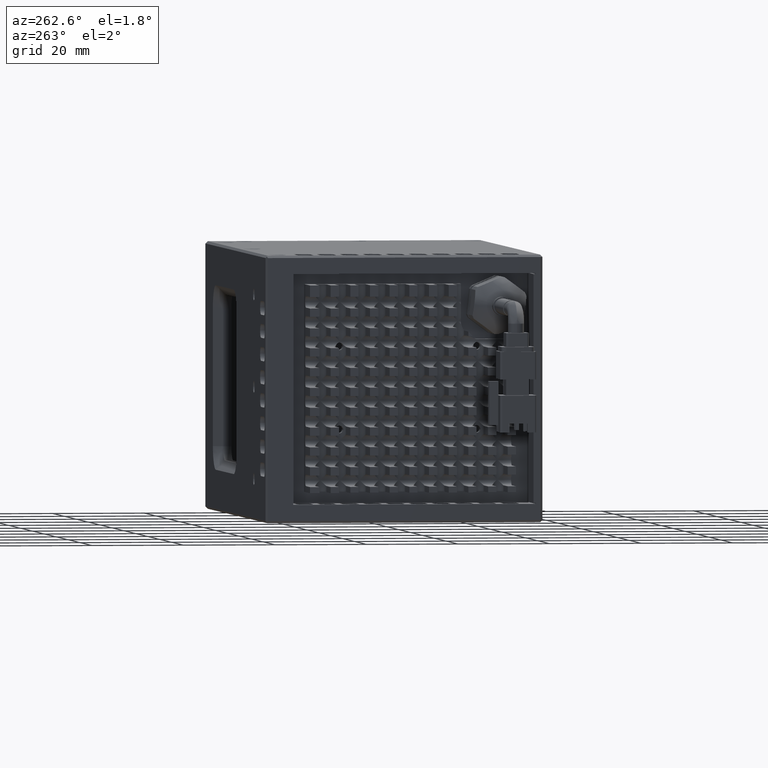
[diagram: clean part render]
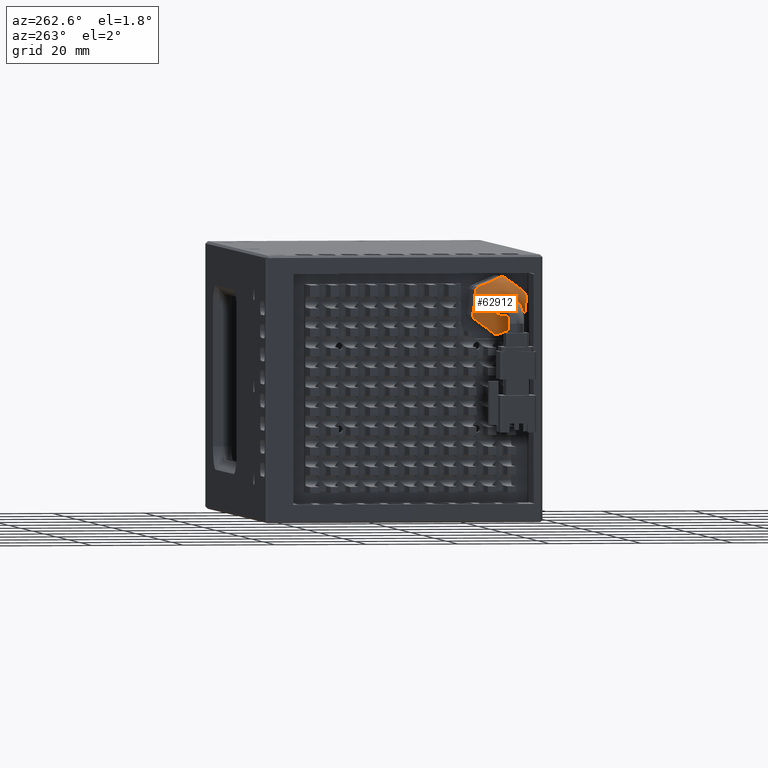
[diagram: same view with one face highlighted and labeled with its STEP entity id]
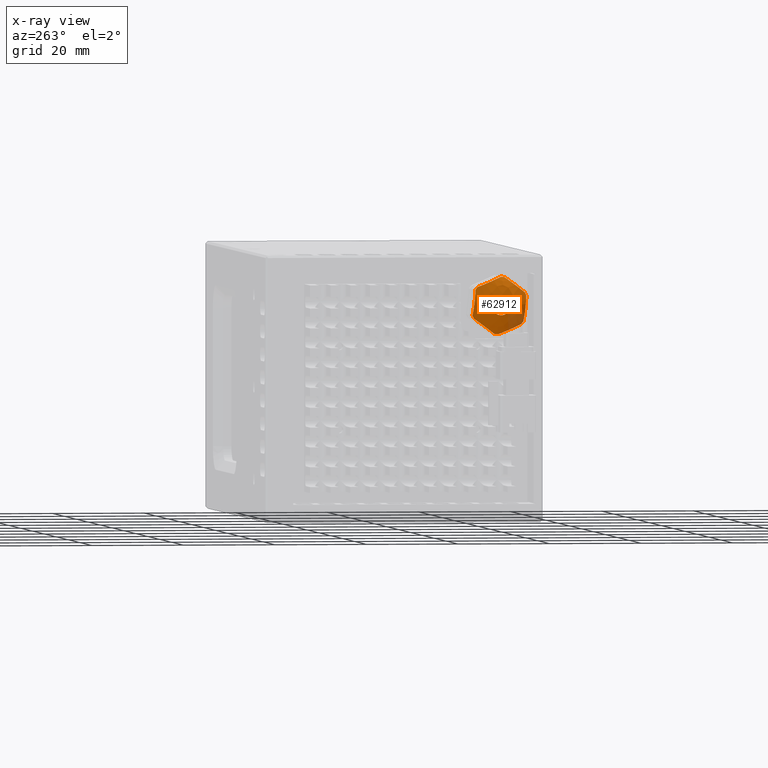
[diagram: x-ray of the same camera — body ghosted, the highlighted face saturated]
A machine part, auxiliary view. The second image highlights one B-rep face of the part: STEP entity #62912.
The next image is the same camera in x-ray: the body ghosted, the highlighted face saturated — about 18% of this face is hidden behind the body in this view.
In plain terms, the highlighted face is a freeform B-spline surface patch.
Its self-contained STEP definition (entity closure, byte-faithful):
#84 = CARTESIAN_POINT ( 'NONE',  ( -69.38120834824232500, -3.563055236811629700, 44.43191963570969700 ) ) ;
#143 = CARTESIAN_POINT ( 'NONE',  ( -69.57956255432687000, 2.515760127302150400, 53.42479840440135800 ) ) ;
#327 = CARTESIAN_POINT ( 'NONE',  ( -68.86375292816285300, -4.107156259765115900, 49.10975138200239300 ) ) ;
#372 = CARTESIAN_POINT ( 'NONE',  ( -69.57956255432743800, 1.036226534503087900, 40.57520159561696000 ) ) ;
#442 = CARTESIAN_POINT ( 'NONE',  ( -68.86375292816285300, 1.775993330902647400, 47.00000000000953500 ) ) ;
#935 = CARTESIAN_POINT ( 'NONE',  ( -69.15758857129357300, -3.469106031768471400, 50.07829686325383300 ) ) ;
#1176 = CARTESIAN_POINT ( 'NONE',  ( -69.67125075074409300, -0.7791131227819094700, 52.07857863096266000 ) ) ;
#1217 = VERTEX_POINT ( 'NONE', #35298 ) ;
#2111 = CARTESIAN_POINT ( 'NONE',  ( -68.86375292816285300, 7.017840799722939900, 50.40375309235000900 ) ) ;
#2479 = B_SPLINE_CURVE_WITH_KNOTS ( 'NONE', 3,
 ( #40564, #3463, #51168, #19546, #56491, #24879, #61840, #30161, #67138, #35475, #3694, #40776, #9052, #46117, #14358, #51406 ),
 .UNSPECIFIED., .F., .F.,
 ( 4, 2, 2, 2, 2, 2, 2, 4 ),
 ( 4.690887623826672200E-016, 0.001475511169496401600, 0.002213266754244368100, 0.002951022338992334400, 0.003688777923740300700, 0.004426533508488267000, 0.005164289093236232800, 0.005902044677984199600 ),
 .UNSPECIFIED. ) ;
#2865 = ORIENTED_EDGE ( 'NONE', *, *, #33401, .F. ) ;
#3463 = CARTESIAN_POINT ( 'NONE',  ( -69.15758857129378600, 1.732659728277374100, 40.91846227494003300 ) ) ;
#3676 = EDGE_CURVE ( 'NONE', #16865, #66622, #28724, .T. ) ;
#3694 = CARTESIAN_POINT ( 'NONE',  ( -69.61395248318233100, -1.564223318503453500, 42.34279233010092000 ) ) ;
#3903 = CARTESIAN_POINT ( 'NONE',  ( -69.74788720313205200, 5.516405416110333500, 42.80281597644518900 ) ) ;
#4085 = CARTESIAN_POINT ( 'NONE',  ( -68.86375292816285300, 1.449180419135050600, 53.24144961694118200 ) ) ;
#4308 = CARTESIAN_POINT ( 'NONE',  ( -69.67125075074416400, 4.896618213582739200, 51.75207641375039500 ) ) ;
#4688 = CARTESIAN_POINT ( 'NONE',  ( -69.67060427605062500, 7.224915172861658500, 48.62346039733898100 ) ) ;
#4977 = CARTESIAN_POINT ( 'NONE',  ( -68.86375292816285300, 1.775993330902647400, 47.00000000000953500 ) ) ;
#5499 = CARTESIAN_POINT ( 'NONE',  ( -69.67060427605076700, -3.672928511056312100, 45.37653960267974900 ) ) ;
#5551 = CARTESIAN_POINT ( 'NONE',  ( -67.11748828113964300, -2.040397117867909200, 52.89484992564335600 ) ) ;
#5671 = EDGE_CURVE ( 'NONE', #28969, #11475, #65297, .T. ) ;
#5853 = DIRECTION ( 'NONE',  ( 0.0000000000000000000, 0.1155358669953259300, -0.9933033088828600000 ) ) ;
#6336 = CIRCLE ( 'NONE', #40163, 6.249999999999516800 ) ;
#6398 = EDGE_CURVE ( 'NONE', #31971, #14296, #6336, .T. ) ;
#6535 = CARTESIAN_POINT ( 'NONE',  ( -69.46139549951436700, -0.2098588700239784100, 52.50187673676001800 ) ) ;
#6621 = CARTESIAN_POINT ( 'NONE',  ( -68.86375292816285300, 1.775993330902647400, 47.00000000000953500 ) ) ;
#7465 = B_SPLINE_CURVE_WITH_KNOTS ( 'NONE', 3,
 ( #51375, #56684, #30361, #67337, #35677, #3903, #40965, #9245, #46317, #14565, #51602, #19986, #56906, #25291, #62240, #30595 ),
 .UNSPECIFIED., .F., .F.,
 ( 4, 2, 2, 2, 2, 2, 2, 4 ),
 ( 3.506984956607857700E-016, 0.001475511169496294900, 0.002213266754244266200, 0.002951022338992237300, 0.003688777923740208700, 0.004426533508488178500, 0.005164289093236150400, 0.005902044677984120600 ),
 .UNSPECIFIED. ) ;
#7968 = EDGE_CURVE ( 'NONE', #11348, #1217, #7465, .T. ) ;
#8208 = ORIENTED_EDGE ( 'NONE', *, *, #9037, .T. ) ;
#9037 = EDGE_CURVE ( 'NONE', #20225, #22791, #60265, .T. ) ;
#9052 = CARTESIAN_POINT ( 'NONE',  ( -69.36540694991359100, -2.208626134369361600, 42.62118931453878200 ) ) ;
#9245 = CARTESIAN_POINT ( 'NONE',  ( -69.76791800731975000, 4.921827646007848500, 42.36068727452639800 ) ) ;
#9631 = CARTESIAN_POINT ( 'NONE',  ( -69.46139549951450900, 5.547832252956119700, 51.47073682254839600 ) ) ;
#10016 = CARTESIAN_POINT ( 'NONE',  ( -69.76751117526068000, 7.309416644641678400, 47.89697092088950100 ) ) ;
#10235 = AXIS2_PLACEMENT_3D ( 'NONE', #6621, #43646, #11923 ) ;
#10277 = DIRECTION ( 'NONE',  ( 0.0000000000000000000, 0.1155358669953259300, -0.9933033088828600000 ) ) ;
#10799 = CARTESIAN_POINT ( 'NONE',  ( -69.76751117526072200, -3.757429982836344900, 46.10302907912925000 ) ) ;
#10855 = CARTESIAN_POINT ( 'NONE',  ( -76.08316824912783700, 4.992152780540819500, 50.51262484915948600 ) ) ;
#11348 = VERTEX_POINT ( 'NONE', #22364 ) ;
#11475 = VERTEX_POINT ( 'NONE', #23283 ) ;
#11850 = CARTESIAN_POINT ( 'NONE',  ( -69.14023917023413900, 0.3302403009129766800, 52.90349509076042300 ) ) ;
#11923 = DIRECTION ( 'NONE',  ( 0.0000000000000000000, 0.1155358669953259300, -0.9933033088828600000 ) ) ;
#12705 = DIRECTION ( 'NONE',  ( 1.000000000000000000, 3.435095995686201000E-016, -5.943609381515295800E-025 ) ) ;
#14296 = VERTEX_POINT ( 'NONE', #37780 ) ;
#14358 = CARTESIAN_POINT ( 'NONE',  ( -69.01067074972844800, -2.807606499710740600, 42.87996274529179200 ) ) ;
#14565 = CARTESIAN_POINT ( 'NONE',  ( -69.67125075074403600, 4.331099784588070100, 41.92142136905575700 ) ) ;
#14971 = CARTESIAN_POINT ( 'NONE',  ( -69.14023917023431000, 6.165693535615012900, 51.20380639695424200 ) ) ;
#15340 = CARTESIAN_POINT ( 'NONE',  ( -69.74827311948443800, 7.395508431765049900, 47.15680893274469600 ) ) ;
#15846 = EDGE_LOOP ( 'NONE', ( #30366, #68716 ) ) ;
#15976 = ORIENTED_EDGE ( 'NONE', *, *, #61651, .T. ) ;
#16138 = CARTESIAN_POINT ( 'NONE',  ( -69.74827311948432400, -3.843521769959718600, 46.84319106727402700 ) ) ;
#16178 = CARTESIAN_POINT ( 'NONE',  ( -70.08185129819501900, -6.113500693981673200, 49.22087308385862800 ) ) ;
#16865 = VERTEX_POINT ( 'NONE', #36426 ) ;
#16965 = CARTESIAN_POINT ( 'NONE',  ( -69.38120834824214000, -3.117553787398188000, 50.33971150953847500 ) ) ;
#17201 = CARTESIAN_POINT ( 'NONE',  ( -68.86375292816285300, 0.6615168280449691400, 53.14983269078837200 ) ) ;
#17737 = CARTESIAN_POINT ( 'NONE',  ( -68.86375292816285300, -3.792667049684699700, 49.83769652459977800 ) ) ;
#18062 = EDGE_CURVE ( 'NONE', #20225, #50007, #21964, .T. ) ;
#18472 = DIRECTION ( 'NONE',  ( 1.000000000000000000, 3.435095995686201000E-016, -5.943609381515295800E-025 ) ) ;
#19430 = CARTESIAN_POINT ( 'NONE',  ( -68.86375292816285300, 1.775993330902647400, 47.00000000000953500 ) ) ;
#19546 = CARTESIAN_POINT ( 'NONE',  ( -69.61245713189381900, 0.6797293302525440100, 41.37335266401940700 ) ) ;
#19986 = CARTESIAN_POINT ( 'NONE',  ( -69.46139549951458000, 3.761845531830432200, 41.49812326325859900 ) ) ;
#20153 = CARTESIAN_POINT ( 'NONE',  ( -69.38120834824199800, 2.221494780315773600, 52.90779187383861200 ) ) ;
#20225 = VERTEX_POINT ( 'NONE', #2111 ) ;
#20371 = CARTESIAN_POINT ( 'NONE',  ( -68.86375292816285300, 6.544666418712424200, 51.04008130879449800 ) ) ;
#20752 = CARTESIAN_POINT ( 'NONE',  ( -69.61395248318253000, 7.479361808445839100, 46.43589136243380700 ) ) ;
#20785 = VERTEX_POINT ( 'NONE', #65944 ) ;
#21144 = B_SPLINE_CURVE_WITH_KNOTS ( 'NONE', 3,
 ( #38075, #935, #16965, #53985, #22370, #59343, #27648, #64644, #32994, #1176, #38295, #6535, #43558, #11850, #48918, #17201 ),
 .UNSPECIFIED., .F., .F.,
 ( 4, 2, 2, 2, 2, 2, 2, 4 ),
 ( 1.319765775190741900E-016, 0.001475511169496877800, 0.002213266754245249300, 0.002951022338993621600, 0.003688777923741994200, 0.004426533508490366900, 0.005164289093238740400, 0.005902044677987113000 ),
 .UNSPECIFIED. ) ;
#21541 = CARTESIAN_POINT ( 'NONE',  ( -69.61395248318233100, -3.927375146640508200, 47.56410863758488000 ) ) ;
#21590 = CARTESIAN_POINT ( 'NONE',  ( -76.08316824912810700, 5.712523559291454100, 44.31933875745265500 ) ) ;
#21661 = AXIS2_PLACEMENT_3D ( 'NONE', #56564, #24969, #61914 ) ;
#21964 = CIRCLE ( 'NONE', #10235, 6.249999999999519500 ) ;
#22305 = ORIENTED_EDGE ( 'NONE', *, *, #38326, .F. ) ;
#22364 = CARTESIAN_POINT ( 'NONE',  ( -68.86375292816285300, 7.344653711489161000, 44.16230347541733900 ) ) ;
#22370 = CARTESIAN_POINT ( 'NONE',  ( -69.67060427605079600, -2.354425536202253700, 50.90717453971647200 ) ) ;
#22791 = VERTEX_POINT ( 'NONE', #35495 ) ;
#22846 =( BOUNDED_SURFACE ( )  B_SPLINE_SURFACE ( 3, 3, ( 
 ( #47698, #143, #37294, #5551 ),
 ( #42569, #10855, #47929, #16178 ),
 ( #53217, #21590, #58555, #26891 ),
 ( #63853, #32215, #372, #37522 ) ),
 .UNSPECIFIED., .F., .F., .F. ) 
 B_SPLINE_SURFACE_WITH_KNOTS ( ( 4, 4 ),
 ( 4, 4 ),
 ( 0.0000000000000000000, 1.000000000000000000 ),
 ( 0.0000000000000000000, 1.000000000000000000 ),
 .UNSPECIFIED. ) 
 GEOMETRIC_REPRESENTATION_ITEM ( )  RATIONAL_B_SPLINE_SURFACE ( (
 ( 1.000000000000000000, 0.7017694484579010100, 0.7017694484579010100, 1.000000000000000000),
 ( 0.6732171387617810200, 0.4724432201612612800, 0.4724432201612612800, 0.6732171387617810200),
 ( 0.6732171387617810200, 0.4724432201612612800, 0.4724432201612612800, 0.6732171387617810200),
 ( 1.000000000000000000, 0.7017694484579010100, 0.7017694484579010100, 1.000000000000000000) ) ) 
 REPRESENTATION_ITEM ( '' )  SURFACE ( )  );
#23283 = CARTESIAN_POINT ( 'NONE',  ( -68.86375292816285300, -4.107156259765115900, 49.10975138200239300 ) ) ;
#23832 = CARTESIAN_POINT ( 'NONE',  ( -72.09568362246530200, 1.775993330902716700, 47.00000000000893200 ) ) ;
#24150 = ORIENTED_EDGE ( 'NONE', *, *, #40477, .T. ) ;
#24431 = CIRCLE ( 'NONE', #65895, 2.000000000000002200 ) ;
#24776 = DIRECTION ( 'NONE',  ( 0.0000000000000000000, 0.1155358669953259300, -0.9933033088828600000 ) ) ;
#24879 = CARTESIAN_POINT ( 'NONE',  ( -69.74788720313206600, 0.01133138474170054300, 41.66211610181510800 ) ) ;
#24969 = DIRECTION ( 'NONE',  ( 1.000000000000000000, 3.435095995686201000E-016, -5.943609381515295800E-025 ) ) ;
#25291 = CARTESIAN_POINT ( 'NONE',  ( -69.14023917023473600, 3.221746360893675800, 41.09650490925837100 ) ) ;
#25470 = CARTESIAN_POINT ( 'NONE',  ( -69.67060427605069600, 3.094496305756325900, 52.53063493704631500 ) ) ;
#25817 = ORIENTED_EDGE ( 'NONE', *, *, #47182, .F. ) ;
#26067 = CARTESIAN_POINT ( 'NONE',  ( -69.36540694991369100, 7.560464355518643500, 45.73862366140457400 ) ) ;
#26851 = CARTESIAN_POINT ( 'NONE',  ( -69.36540694991344900, -4.008477693713319700, 48.26137633861409200 ) ) ;
#26891 = CARTESIAN_POINT ( 'NONE',  ( -70.08185129819513300, -5.393129915231303300, 43.02758699215177500 ) ) ;
#27268 = CARTESIAN_POINT ( 'NONE',  ( -68.86375292816285300, 1.775993330902647400, 47.00000000000953500 ) ) ;
#27648 = CARTESIAN_POINT ( 'NONE',  ( -69.76751117526085000, -1.767517929904791800, 51.34359969915998100 ) ) ;
#28724 = CIRCLE ( 'NONE', #30100, 6.249999999999519500 ) ;
#28737 = CIRCLE ( 'NONE', #39989, 6.249999999999519500 ) ;
#28969 = VERTEX_POINT ( 'NONE', #17737 ) ;
#29093 = DIRECTION ( 'NONE',  ( 0.0000000000000000000, -0.1155358669953258200, 0.9933033088828601100 ) ) ;
#29848 = ORIENTED_EDGE ( 'NONE', *, *, #7968, .T. ) ;
#30100 = AXIS2_PLACEMENT_3D ( 'NONE', #4977, #42016, #10277 ) ;
#30161 = CARTESIAN_POINT ( 'NONE',  ( -69.76791800731977800, -0.6688521879133749700, 41.95597120429006600 ) ) ;
#30361 = CARTESIAN_POINT ( 'NONE',  ( -69.38120834824218300, 6.669540449203119600, 43.66028849047898300 ) ) ;
#30366 = ORIENTED_EDGE ( 'NONE', *, *, #49768, .T. ) ;
#30548 = EDGE_CURVE ( 'NONE', #28969, #16865, #21144, .T. ) ;
#30595 = CARTESIAN_POINT ( 'NONE',  ( -68.86375292816285300, 2.890469833762177000, 40.85016730923076300 ) ) ;
#30602 = ORIENTED_EDGE ( 'NONE', *, *, #3676, .T. ) ;
#30761 = CARTESIAN_POINT ( 'NONE',  ( -69.76751117526085000, 3.765905383833764800, 52.24057062004008900 ) ) ;
#31121 = CARTESIAN_POINT ( 'NONE',  ( -69.38120834824201200, 7.115041898616981400, 49.56808036430897600 ) ) ;
#31142 = CARTESIAN_POINT ( 'NONE',  ( -68.86375292816285300, 6.544666418712424200, 51.04008130879449800 ) ) ;
#31361 = CARTESIAN_POINT ( 'NONE',  ( -69.01067074972847600, 7.635850173332784200, 45.09050473327419400 ) ) ;
#31971 = VERTEX_POINT ( 'NONE', #57940 ) ;
#32153 = CARTESIAN_POINT ( 'NONE',  ( -69.01067074972826300, -4.083863511527429300, 48.90949526674420900 ) ) ;
#32215 = CARTESIAN_POINT ( 'NONE',  ( -69.57956255432741000, 3.970657990856444600, 40.91651937782536000 ) ) ;
#32568 = DIRECTION ( 'NONE',  ( 0.0000000000000000000, 0.1155358669952932900, -0.9933033088828637800 ) ) ;
#32994 = CARTESIAN_POINT ( 'NONE',  ( -69.74827311948448000, -1.169564738817325400, 51.78823836793858200 ) ) ;
#33401 = EDGE_CURVE ( 'NONE', #20785, #62258, #38322, .T. ) ;
#33794 = CIRCLE ( 'NONE', #59236, 6.249999999999519500 ) ;
#34070 = B_SPLINE_CURVE_WITH_KNOTS ( 'NONE', 3,
 ( #4085, #35843, #20153, #57078, #25470, #62408, #30761, #67756, #36062, #4308, #41377, #9631, #46710, #14971, #52003, #20371 ),
 .UNSPECIFIED., .F., .F.,
 ( 4, 2, 2, 2, 2, 2, 2, 4 ),
 ( 2.596296363159514900E-017, 0.001475511169496785000, 0.002213266754245160400, 0.002951022338993536100, 0.003688777923741910100, 0.004426533508490284500, 0.005164289093238658800, 0.005902044677987033200 ),
 .UNSPECIFIED. ) ;
#35298 = CARTESIAN_POINT ( 'NONE',  ( -68.86375292816285300, 2.890469833762177000, 40.85016730923076300 ) ) ;
#35475 = CARTESIAN_POINT ( 'NONE',  ( -69.67125075074393700, -1.344631551777275300, 42.24792358626742600 ) ) ;
#35495 = CARTESIAN_POINT ( 'NONE',  ( -68.86375292816285300, 7.659142921570422800, 44.89024861801639300 ) ) ;
#35677 = CARTESIAN_POINT ( 'NONE',  ( -69.67060427605058200, 5.906412198007584100, 43.09282546030131300 ) ) ;
#35747 = VERTEX_POINT ( 'NONE', #62179 ) ;
#35843 = CARTESIAN_POINT ( 'NONE',  ( -69.15758857129343100, 1.819326933526871400, 53.08153772507832700 ) ) ;
#36062 = CARTESIAN_POINT ( 'NONE',  ( -69.74827311948452300, 4.449950362044707400, 51.94504730067372800 ) ) ;
#36426 = CARTESIAN_POINT ( 'NONE',  ( -68.86375292816285300, 0.6615168280449691400, 53.14983269078837200 ) ) ;
#36456 = CARTESIAN_POINT ( 'NONE',  ( -69.61245713189376300, 7.196944862330591200, 48.86393119418734400 ) ) ;
#37255 = CARTESIAN_POINT ( 'NONE',  ( -69.61245713189386200, -3.644958200525246100, 45.13606880583137800 ) ) ;
#37294 = CARTESIAN_POINT ( 'NONE',  ( -69.57956255432689800, -0.4186713290508614100, 53.08348062219300800 ) ) ;
#37471 = AXIS2_PLACEMENT_3D ( 'NONE', #442, #37597, #5853 ) ;
#37522 = CARTESIAN_POINT ( 'NONE',  ( -67.11748828113989900, -0.5854992543141562800, 40.38657089906728700 ) ) ;
#37597 = DIRECTION ( 'NONE',  ( 1.000000000000000000, 3.435095995686201000E-016, -5.943609381515295800E-025 ) ) ;
#37780 = CARTESIAN_POINT ( 'NONE',  ( -68.86375292816285300, 2.498092499623379800, 40.79185431949214500 ) ) ;
#38075 = CARTESIAN_POINT ( 'NONE',  ( -68.86375292816285300, -3.792667049684699700, 49.83769652459977800 ) ) ;
#38295 = CARTESIAN_POINT ( 'NONE',  ( -69.61395248318247300, -0.5871584972338312900, 52.22131630749275600 ) ) ;
#38322 = CIRCLE ( 'NONE', #60036, 6.249999999999515100 ) ;
#38326 = EDGE_CURVE ( 'NONE', #14296, #1217, #33794, .T. ) ;
#39352 = EDGE_CURVE ( 'NONE', #62111, #35747, #59139, .T. ) ;
#39989 = AXIS2_PLACEMENT_3D ( 'NONE', #50143, #18472, #55494 ) ;
#40161 = CARTESIAN_POINT ( 'NONE',  ( -72.09568362246530200, 2.007065064893367900, 45.01339338224320800 ) ) ;
#40163 = AXIS2_PLACEMENT_3D ( 'NONE', #27268, #64212, #32568 ) ;
#40477 = EDGE_CURVE ( 'NONE', #20785, #11475, #64111, .T. ) ;
#40564 = CARTESIAN_POINT ( 'NONE',  ( -68.86375292816285300, 2.102806242668322900, 40.75855038307755500 ) ) ;
#40776 = CARTESIAN_POINT ( 'NONE',  ( -69.46139549951442400, -1.995845591150274600, 42.52926317746930400 ) ) ;
#40965 = CARTESIAN_POINT ( 'NONE',  ( -69.76751117526056600, 5.319504591710440900, 42.65640030085803100 ) ) ;
#41377 = CARTESIAN_POINT ( 'NONE',  ( -69.61395248318250100, 5.116209980309052200, 51.65720766991690000 ) ) ;
#41728 = CARTESIAN_POINT ( 'NONE',  ( -69.74788720313210900, 7.281067362270874800, 48.14069987463955900 ) ) ;
#42016 = DIRECTION ( 'NONE',  ( -1.000000000000000000, -3.435095995686201000E-016, 5.943609381515295800E-025 ) ) ;
#42315 = CARTESIAN_POINT ( 'NONE',  ( -69.15758857129377200, -3.512439634392970200, 43.99675913818516200 ) ) ;
#42524 = CARTESIAN_POINT ( 'NONE',  ( -69.74788720313216600, -3.729080700465533300, 45.85930012537919300 ) ) ;
#42569 = CARTESIAN_POINT ( 'NONE',  ( -70.08185129819497700, 8.945116577036481300, 50.97241300786692600 ) ) ;
#43558 = CARTESIAN_POINT ( 'NONE',  ( -69.36540694991340700, -0.02385822844040110000, 52.64018702408416300 ) ) ;
#43646 = DIRECTION ( 'NONE',  ( 1.000000000000000000, 3.435095995686201000E-016, -5.943609381515295800E-025 ) ) ;
#44415 = CARTESIAN_POINT ( 'NONE',  ( -68.86375292816285300, 1.775993330902647400, 47.00000000000953500 ) ) ;
#44769 = FACE_BOUND ( 'NONE', #15846, .T. ) ;
#46117 = CARTESIAN_POINT ( 'NONE',  ( -69.14023917023453700, -2.613706873808888000, 42.79619360306332300 ) ) ;
#46317 = CARTESIAN_POINT ( 'NONE',  ( -69.74827311948429600, 4.721551400623289900, 42.21176163207969300 ) ) ;
#46462 = FACE_OUTER_BOUND ( 'NONE', #54340, .T. ) ;
#46710 = CARTESIAN_POINT ( 'NONE',  ( -69.36540694991353500, 5.760612796175310600, 51.37881068547886800 ) ) ;
#47103 = CARTESIAN_POINT ( 'NONE',  ( -69.76791800731984900, 7.366673164823561500, 47.40471607024569100 ) ) ;
#47182 = EDGE_CURVE ( 'NONE', #11348, #22791, #28737, .T. ) ;
#47698 = CARTESIAN_POINT ( 'NONE',  ( -67.11748828113961500, 4.137485916119175900, 53.61342910095101600 ) ) ;
#47880 = CARTESIAN_POINT ( 'NONE',  ( -69.76791800731982100, -3.814686503018229800, 46.59528392977304600 ) ) ;
#47929 = CARTESIAN_POINT ( 'NONE',  ( -76.08316824912785100, -2.160536897485977100, 49.68066124256606700 ) ) ;
#48918 = CARTESIAN_POINT ( 'NONE',  ( -69.01067074972813500, 0.4997363190867983900, 53.02953252146132700 ) ) ;
#49768 = EDGE_CURVE ( 'NONE', #35747, #62111, #24431, .T. ) ;
#49773 = DIRECTION ( 'NONE',  ( 0.0000000000000000000, 0.1155358669953666000, -0.9933033088828552300 ) ) ;
#50007 = VERTEX_POINT ( 'NONE', #31142 ) ;
#50143 = CARTESIAN_POINT ( 'NONE',  ( -68.86375292816285300, 1.775993330902647400, 47.00000000000953500 ) ) ;
#51168 = CARTESIAN_POINT ( 'NONE',  ( -69.38120834824229600, 1.330491881488283800, 41.09220812617983400 ) ) ;
#51204 = ORIENTED_EDGE ( 'NONE', *, *, #5671, .F. ) ;
#51375 = CARTESIAN_POINT ( 'NONE',  ( -68.86375292816285300, 7.344653711489161000, 44.16230347541733900 ) ) ;
#51406 = CARTESIAN_POINT ( 'NONE',  ( -68.86375292816285300, -2.992679756905907600, 42.95991869122291700 ) ) ;
#51602 = CARTESIAN_POINT ( 'NONE',  ( -69.61395248318244500, 4.139145159040094900, 41.77868369252573200 ) ) ;
#52003 = CARTESIAN_POINT ( 'NONE',  ( -69.01067074972824900, 6.359593161516713200, 51.12003725472583000 ) ) ;
#52364 = CARTESIAN_POINT ( 'NONE',  ( -69.67125075074412200, 7.451724667267646000, 46.67349778279739100 ) ) ;
#52887 = ORIENTED_EDGE ( 'NONE', *, *, #65062, .T. ) ;
#53158 = CARTESIAN_POINT ( 'NONE',  ( -69.67125075074402200, -3.899738005462314700, 47.32650221722131100 ) ) ;
#53217 = CARTESIAN_POINT ( 'NONE',  ( -70.08185129819510500, 9.665487355787213600, 44.77912691616013100 ) ) ;
#53985 = CARTESIAN_POINT ( 'NONE',  ( -69.61245713189387600, -2.548694199875747300, 50.76271614182066800 ) ) ;
#54340 = EDGE_LOOP ( 'NONE', ( #25817, #29848, #22305, #62442, #52887, #2865, #24150, #51204, #57157, #30602, #15976, #66697, #8208 ) ) ;
#55494 = DIRECTION ( 'NONE',  ( 0.0000000000000000000, 0.1155358669953259300, -0.9933033088828600000 ) ) ;
#56390 = DIRECTION ( 'NONE',  ( 1.000000000000000000, 3.435095995686201000E-016, -5.943609381515295800E-025 ) ) ;
#56491 = CARTESIAN_POINT ( 'NONE',  ( -69.67060427605066800, 0.4574903560481536900, 41.46936506297194600 ) ) ;
#56564 = CARTESIAN_POINT ( 'NONE',  ( -72.09568362246530200, 1.775993330902716700, 47.00000000000893200 ) ) ;
#56684 = CARTESIAN_POINT ( 'NONE',  ( -69.15758857129368700, 7.021092693573398200, 43.92170313676363900 ) ) ;
#56906 = CARTESIAN_POINT ( 'NONE',  ( -69.36540694991373400, 3.575844890246930000, 41.35981297593453100 ) ) ;
#57078 = CARTESIAN_POINT ( 'NONE',  ( -69.61245713189376300, 2.872257331551832500, 52.62664733599891800 ) ) ;
#57157 = ORIENTED_EDGE ( 'NONE', *, *, #30548, .T. ) ;
#57675 = CARTESIAN_POINT ( 'NONE',  ( -69.46139549951456600, 7.533684453883029900, 45.96886008579814800 ) ) ;
#57940 = CARTESIAN_POINT ( 'NONE',  ( -68.86375292816285300, 2.102806242668322900, 40.75855038307755500 ) ) ;
#58260 = CARTESIAN_POINT ( 'NONE',  ( -68.86375292816285300, -3.465854137917597600, 43.59624690766882100 ) ) ;
#58500 = CARTESIAN_POINT ( 'NONE',  ( -69.46139549951433900, -3.981697792077699500, 48.03113991422054600 ) ) ;
#58555 = CARTESIAN_POINT ( 'NONE',  ( -76.08316824912812100, -1.440166118735522800, 43.48737515085923600 ) ) ;
#59139 = CIRCLE ( 'NONE', #21661, 2.000000000000002200 ) ;
#59236 = AXIS2_PLACEMENT_3D ( 'NONE', #19430, #56390, #24776 ) ;
#59343 = CARTESIAN_POINT ( 'NONE',  ( -69.74788720313225100, -1.964418754304794800, 51.19718402357275300 ) ) ;
#60036 = AXIS2_PLACEMENT_3D ( 'NONE', #44415, #12705, #49773 ) ;
#60265 = B_SPLINE_CURVE_WITH_KNOTS ( 'NONE', 3,
 ( #68117, #62785, #31121, #36456, #4688, #41728, #10016, #47103, #15340, #52364, #20752, #57675, #26067, #63014, #31361, #68338 ),
 .UNSPECIFIED., .F., .F.,
 ( 4, 2, 2, 2, 2, 2, 2, 4 ),
 ( 1.497122641742852700E-016, 0.001475511169496494800, 0.002213266754244667300, 0.002951022338992840100, 0.003688777923741012800, 0.004426533508489185500, 0.005164289093237358700, 0.005902044677985531000 ),
 .UNSPECIFIED. ) ;
#60780 = DIRECTION ( 'NONE',  ( 1.000000000000000000, 3.435095995686201000E-016, -5.943609381515295800E-025 ) ) ;
#61651 = EDGE_CURVE ( 'NONE', #66622, #50007, #34070, .T. ) ;
#61840 = CARTESIAN_POINT ( 'NONE',  ( -69.76751117526065100, -0.2139187220289190400, 41.75942937997803700 ) ) ;
#61914 = DIRECTION ( 'NONE',  ( 0.0000000000000000000, -0.1155358669953258200, 0.9933033088828601100 ) ) ;
#62111 = VERTEX_POINT ( 'NONE', #40161 ) ;
#62179 = CARTESIAN_POINT ( 'NONE',  ( -72.09568362246530200, 1.544921596912064900, 48.98660661777465500 ) ) ;
#62240 = CARTESIAN_POINT ( 'NONE',  ( -69.01067074972857500, 3.052250342719560600, 40.97046747855725400 ) ) ;
#62258 = VERTEX_POINT ( 'NONE', #63022 ) ;
#62408 = CARTESIAN_POINT ( 'NONE',  ( -69.74788720313222300, 3.540655277063015300, 52.33788389820305300 ) ) ;
#62442 = ORIENTED_EDGE ( 'NONE', *, *, #6398, .F. ) ;
#62785 = CARTESIAN_POINT ( 'NONE',  ( -69.15758857129347300, 7.064426296198351300, 50.00324086183330500 ) ) ;
#62912 = ADVANCED_FACE ( 'NONE', ( #44769, #46462 ), #22846, .T. ) ;
#63014 = CARTESIAN_POINT ( 'NONE',  ( -69.14023917023460800, 7.611446565604945000, 45.30031130620378800 ) ) ;
#63022 = CARTESIAN_POINT ( 'NONE',  ( -68.86375292816285300, -2.992679756905907600, 42.95991869122291700 ) ) ;
#63801 = CARTESIAN_POINT ( 'NONE',  ( -69.14023917023423800, -4.059459903799619500, 48.69968869381483500 ) ) ;
#63853 = CARTESIAN_POINT ( 'NONE',  ( -67.11748828113987000, 5.592383779673666000, 41.10515007437504000 ) ) ;
#64111 = B_SPLINE_CURVE_WITH_KNOTS ( 'NONE', 3,
 ( #58260, #42315, #84, #37255, #5499, #42524, #10799, #47880, #16138, #53158, #21541, #58500, #26851, #63801, #32153, #327 ),
 .UNSPECIFIED., .F., .F.,
 ( 4, 2, 2, 2, 2, 2, 2, 4 ),
 ( 3.681255805517746600E-016, 0.001475511169496699300, 0.002213266754244868100, 0.002951022338993037000, 0.003688777923741205800, 0.004426533508489373700, 0.005164289093237543400, 0.005902044677985712200 ),
 .UNSPECIFIED. ) ;
#64212 = DIRECTION ( 'NONE',  ( 1.000000000000000000, 3.435095995686201000E-016, -5.943609381515295800E-025 ) ) ;
#64644 = CARTESIAN_POINT ( 'NONE',  ( -69.76791800731994900, -1.369840984201970800, 51.63931272549179100 ) ) ;
#65062 = EDGE_CURVE ( 'NONE', #31971, #62258, #2479, .T. ) ;
#65297 = CIRCLE ( 'NONE', #37471, 6.249999999999519500 ) ;
#65895 = AXIS2_PLACEMENT_3D ( 'NONE', #23832, #60780, #29093 ) ;
#65944 = CARTESIAN_POINT ( 'NONE',  ( -68.86375292816285300, -3.465854137917597600, 43.59624690766882100 ) ) ;
#66622 = VERTEX_POINT ( 'NONE', #68090 ) ;
#66697 = ORIENTED_EDGE ( 'NONE', *, *, #18062, .F. ) ;
#67138 = CARTESIAN_POINT ( 'NONE',  ( -69.74827311948423900, -0.8979637002394858000, 42.05495269934421300 ) ) ;
#67337 = CARTESIAN_POINT ( 'NONE',  ( -69.61245713189369200, 6.100680861680974200, 43.23728385819703100 ) ) ;
#67756 = CARTESIAN_POINT ( 'NONE',  ( -69.76791800732003400, 4.220838849718489000, 52.04402879572795400 ) ) ;
#68090 = CARTESIAN_POINT ( 'NONE',  ( -68.86375292816285300, 1.449180419135050600, 53.24144961694118200 ) ) ;
#68117 = CARTESIAN_POINT ( 'NONE',  ( -68.86375292816285300, 7.017840799722939900, 50.40375309235000900 ) ) ;
#68338 = CARTESIAN_POINT ( 'NONE',  ( -68.86375292816285300, 7.659142921570422800, 44.89024861801639300 ) ) ;
#68716 = ORIENTED_EDGE ( 'NONE', *, *, #39352, .T. ) ;